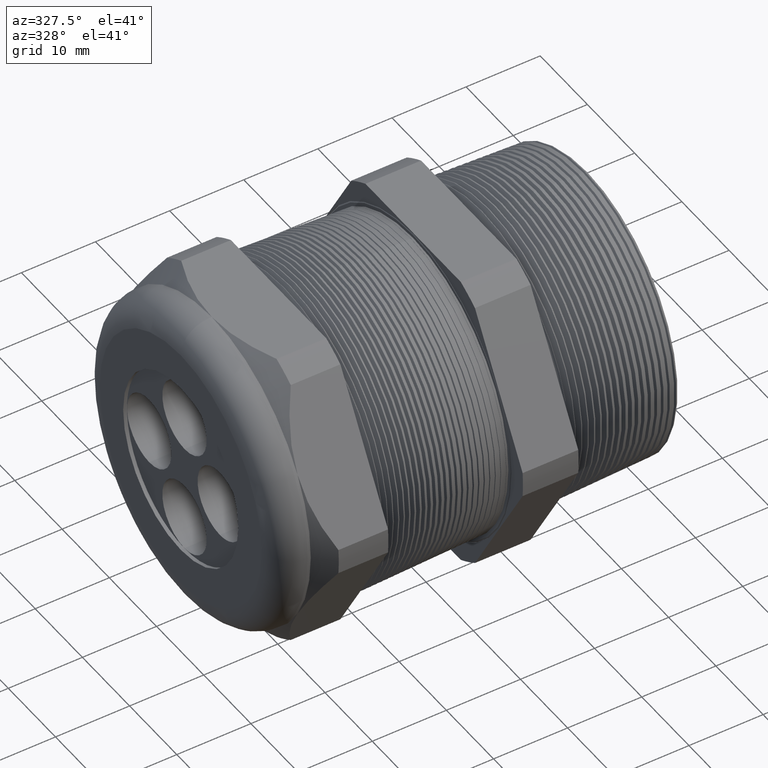
[diagram: clean part render]
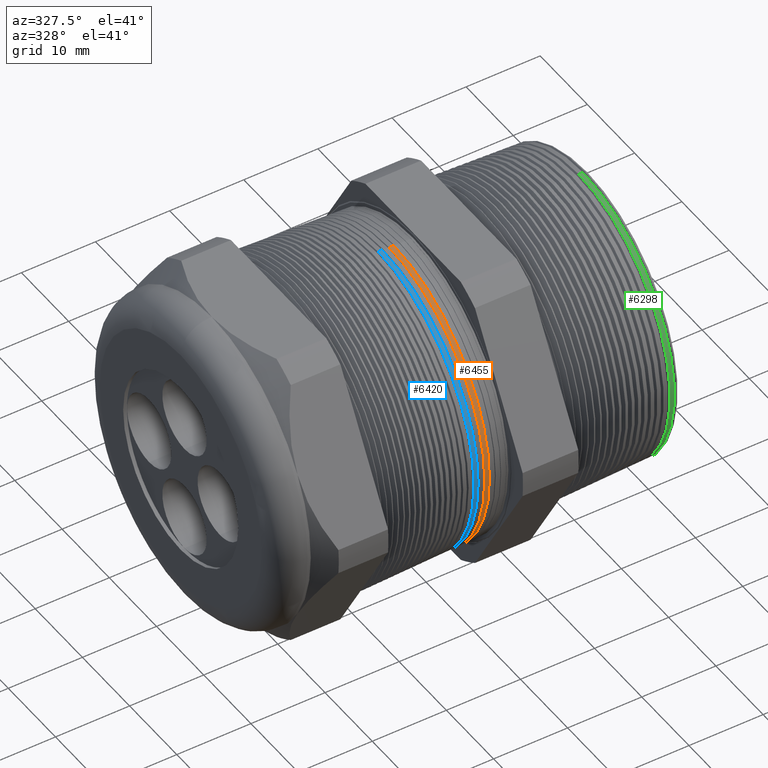
[diagram: same view with three faces highlighted in distinct colors, each labeled with its STEP entity id]
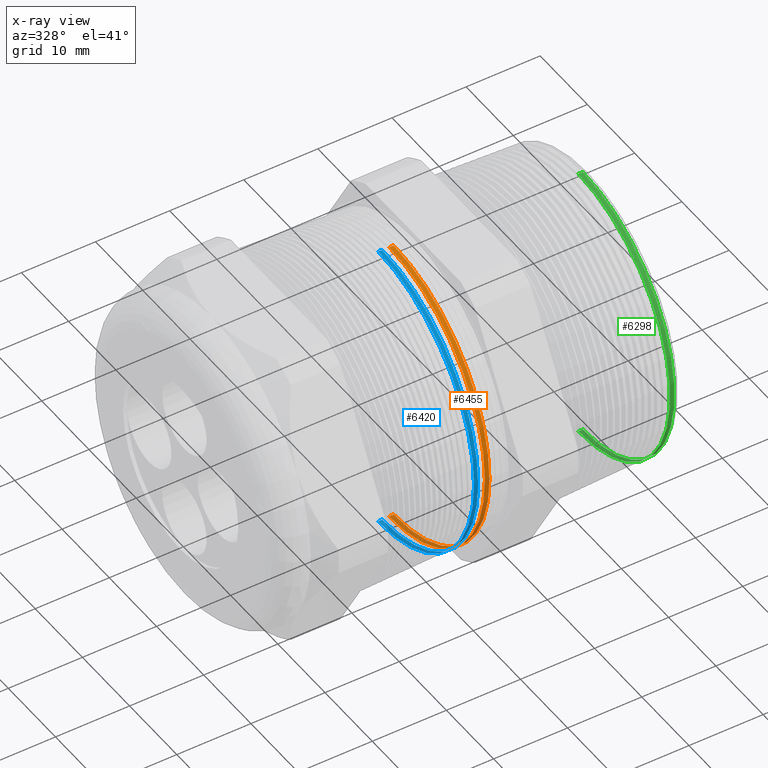
[diagram: x-ray of the same camera — body ghosted, the three highlighted faces saturated]
A machine part, auxiliary view with three faces highlighted in distinct colors.
The next image is the same camera in x-ray (body ghosted, the three faces saturated) — at least one of them is partly hidden behind the body in this view.
Their STEP definitions:

[orange] entity #6455 — the highlighted conical surface has half-angle 2 deg.
#620 = CARTESIAN_POINT ( 'NONE',  ( -0.7089635698838094900, 0.0000000000000000000, 0.7986511390053001600 ) ) ;
#704 = CARTESIAN_POINT ( 'NONE',  ( -0.7089635698838094900, 9.785931555235194000E-017, -0.7986511390053001600 ) ) ;
#745 = CARTESIAN_POINT ( 'NONE',  ( -0.7336373450403760300, 9.791207500288103700E-017, -0.7995127662200336400 ) ) ;
#751 = CARTESIAN_POINT ( 'NONE',  ( -0.7336373450403760300, 0.0000000000000000000, 0.7995127662200336400 ) ) ;
#2175 = DIRECTION ( 'NONE',  ( -0.9993908270190959800, 0.0000000000000000000, 0.03489949670249361400 ) ) ;
#2176 = VECTOR ( 'NONE', #2175, 39.37007874015748100 ) ;
#2177 = CARTESIAN_POINT ( 'NONE',  ( -0.6052755905511809600, 0.0000000000000000000, 0.7950302749799610400 ) ) ;
#2178 = LINE ( 'NONE', #2177, #2176 ) ;
#2179 = DIRECTION ( 'NONE',  ( -0.9993908270190959800, 4.273955692856241200E-018, -0.03489949670249361400 ) ) ;
#2180 = VECTOR ( 'NONE', #2179, 39.37007874015748100 ) ;
#2181 = CARTESIAN_POINT ( 'NONE',  ( -0.6052755905511809600, 9.736312814794494100E-017, -0.7950302749799610400 ) ) ;
#2185 = LINE ( 'NONE', #2181, #2180 ) ;
#2730 = DIRECTION ( 'NONE',  ( 0.0000000000000000000, 0.0000000000000000000, -1.000000000000000000 ) ) ;
#2731 = DIRECTION ( 'NONE',  ( -1.000000000000000000, 0.0000000000000000000, 0.0000000000000000000 ) ) ;
#2732 = CARTESIAN_POINT ( 'NONE',  ( -0.7336373450403760300, 0.0000000000000000000, 0.0000000000000000000 ) ) ;
#2733 = AXIS2_PLACEMENT_3D ( 'NONE', #2732, #2731, #2730 ) ;
#2734 = CIRCLE ( 'NONE', #2733, 0.7995127662200336400 ) ;
#2735 = DIRECTION ( 'NONE',  ( 0.0000000000000000000, 0.0000000000000000000, 1.000000000000000000 ) ) ;
#2736 = DIRECTION ( 'NONE',  ( 1.000000000000000000, 0.0000000000000000000, 0.0000000000000000000 ) ) ;
#2737 = CARTESIAN_POINT ( 'NONE',  ( -0.7089635698838094900, 0.0000000000000000000, 0.0000000000000000000 ) ) ;
#2738 = AXIS2_PLACEMENT_3D ( 'NONE', #2737, #2736, #2735 ) ;
#2739 = CIRCLE ( 'NONE', #2738, 0.7986511390053001600 ) ;
#2755 = CONICAL_SURFACE ( 'NONE', #2816, 0.7950302749799610400, 0.03490658503987922900 ) ;
#2756 = FACE_OUTER_BOUND ( 'NONE', #6379, .T. ) ;
#2813 = DIRECTION ( 'NONE',  ( 0.0000000000000000000, 0.0000000000000000000, 1.000000000000000000 ) ) ;
#2814 = DIRECTION ( 'NONE',  ( -1.000000000000000000, 0.0000000000000000000, 0.0000000000000000000 ) ) ;
#2815 = CARTESIAN_POINT ( 'NONE',  ( -0.6052755905511809600, 0.0000000000000000000, 0.0000000000000000000 ) ) ;
#2816 = AXIS2_PLACEMENT_3D ( 'NONE', #2815, #2814, #2813 ) ;
#5331 = VERTEX_POINT ( 'NONE', #620 ) ;
#5354 = VERTEX_POINT ( 'NONE', #704 ) ;
#5395 = VERTEX_POINT ( 'NONE', #751 ) ;
#5398 = VERTEX_POINT ( 'NONE', #745 ) ;
#6131 = EDGE_CURVE ( 'NONE', #5354, #5398, #2185, .T. ) ;
#6134 = EDGE_CURVE ( 'NONE', #5331, #5395, #2178, .T. ) ;
#6379 = EDGE_LOOP ( 'NONE', ( #6380, #6433, #6435, #6436 ) ) ;
#6380 = ORIENTED_EDGE ( 'NONE', *, *, #6131, .F. ) ;
#6433 = ORIENTED_EDGE ( 'NONE', *, *, #6434, .F. ) ;
#6434 = EDGE_CURVE ( 'NONE', #5331, #5354, #2739, .T. ) ;
#6435 = ORIENTED_EDGE ( 'NONE', *, *, #6134, .T. ) ;
#6436 = ORIENTED_EDGE ( 'NONE', *, *, #6437, .F. ) ;
#6437 = EDGE_CURVE ( 'NONE', #5398, #5395, #2734, .T. ) ;
#6455 = ADVANCED_FACE ( 'NONE', ( #2756 ), #2755, .T. ) ;

[blue] entity #6420 — the highlighted conical surface has half-angle 2 deg.
#729 = CARTESIAN_POINT ( 'NONE',  ( -0.7700987089584209200, 0.0000000000000000000, 0.8007860251047701500 ) ) ;
#735 = CARTESIAN_POINT ( 'NONE',  ( -0.7700987089584209200, 9.811559667922354100E-017, -0.8007860251047701500 ) ) ;
#856 = CARTESIAN_POINT ( 'NONE',  ( -0.7923560489813498100, 9.816318911379818900E-017, -0.8015632685452099800 ) ) ;
#862 = CARTESIAN_POINT ( 'NONE',  ( -0.7923560489813498100, 0.0000000000000000000, 0.8015632685452099800 ) ) ;
#2064 = DIRECTION ( 'NONE',  ( -0.9993908270190959800, 4.273955692856241200E-018, -0.03489949670249361400 ) ) ;
#2065 = VECTOR ( 'NONE', #2064, 39.37007874015748100 ) ;
#2066 = CARTESIAN_POINT ( 'NONE',  ( -0.6052755905511809600, 9.736312814794494100E-017, -0.7950302749799610400 ) ) ;
#2072 = LINE ( 'NONE', #2066, #2065 ) ;
#2161 = DIRECTION ( 'NONE',  ( -0.9993908270190959800, 0.0000000000000000000, 0.03489949670249361400 ) ) ;
#2162 = VECTOR ( 'NONE', #2161, 39.37007874015748100 ) ;
#2163 = CARTESIAN_POINT ( 'NONE',  ( -0.6052755905511809600, 0.0000000000000000000, 0.7950302749799610400 ) ) ;
#2164 = LINE ( 'NONE', #2163, #2162 ) ;
#2440 = CIRCLE ( 'NONE', #2754, 0.8015632685452102100 ) ;
#2693 = DIRECTION ( 'NONE',  ( 0.0000000000000000000, 0.0000000000000000000, 1.000000000000000000 ) ) ;
#2694 = DIRECTION ( 'NONE',  ( 1.000000000000000000, 0.0000000000000000000, 0.0000000000000000000 ) ) ;
#2695 = AXIS2_PLACEMENT_3D ( 'NONE', #2700, #2694, #2693 ) ;
#2696 = CIRCLE ( 'NONE', #2695, 0.8007860251047701500 ) ;
#2697 = DIRECTION ( 'NONE',  ( 0.0000000000000000000, 0.0000000000000000000, 1.000000000000000000 ) ) ;
#2698 = DIRECTION ( 'NONE',  ( -1.000000000000000000, 0.0000000000000000000, 0.0000000000000000000 ) ) ;
#2699 = AXIS2_PLACEMENT_3D ( 'NONE', #2707, #2698, #2697 ) ;
#2700 = CARTESIAN_POINT ( 'NONE',  ( -0.7700987089584209200, 0.0000000000000000000, 0.0000000000000000000 ) ) ;
#2701 = CONICAL_SURFACE ( 'NONE', #2699, 0.7950302749799610400, 0.03490658503987922900 ) ;
#2702 = FACE_OUTER_BOUND ( 'NONE', #6421, .T. ) ;
#2707 = CARTESIAN_POINT ( 'NONE',  ( -0.6052755905511809600, 0.0000000000000000000, 0.0000000000000000000 ) ) ;
#2751 = DIRECTION ( 'NONE',  ( 0.0000000000000000000, 0.0000000000000000000, -1.000000000000000000 ) ) ;
#2752 = DIRECTION ( 'NONE',  ( -1.000000000000000000, 0.0000000000000000000, 0.0000000000000000000 ) ) ;
#2753 = CARTESIAN_POINT ( 'NONE',  ( -0.7923560489813498100, 0.0000000000000000000, 0.0000000000000000000 ) ) ;
#2754 = AXIS2_PLACEMENT_3D ( 'NONE', #2753, #2752, #2751 ) ;
#5371 = VERTEX_POINT ( 'NONE', #735 ) ;
#5374 = VERTEX_POINT ( 'NONE', #729 ) ;
#5437 = VERTEX_POINT ( 'NONE', #862 ) ;
#5440 = VERTEX_POINT ( 'NONE', #856 ) ;
#6089 = EDGE_CURVE ( 'NONE', #5371, #5440, #2072, .T. ) ;
#6143 = EDGE_CURVE ( 'NONE', #5374, #5437, #2164, .T. ) ;
#6420 = ADVANCED_FACE ( 'NONE', ( #2702 ), #2701, .T. ) ;
#6421 = EDGE_LOOP ( 'NONE', ( #6422, #6423, #6425, #6426 ) ) ;
#6422 = ORIENTED_EDGE ( 'NONE', *, *, #6089, .F. ) ;
#6423 = ORIENTED_EDGE ( 'NONE', *, *, #6424, .F. ) ;
#6424 = EDGE_CURVE ( 'NONE', #5374, #5371, #2696, .T. ) ;
#6425 = ORIENTED_EDGE ( 'NONE', *, *, #6143, .T. ) ;
#6426 = ORIENTED_EDGE ( 'NONE', *, *, #6427, .F. ) ;
#6427 = EDGE_CURVE ( 'NONE', #5440, #5437, #2440, .T. ) ;

[green] entity #6298 — the highlighted conical surface has half-angle 2 deg.
#2188 = CIRCLE ( 'NONE', #2190, 0.7635480703260414400 ) ;
#2190 = AXIS2_PLACEMENT_3D ( 'NONE', #2439, #2501, #2500 ) ;
#2418 = DIRECTION ( 'NONE',  ( 0.0000000000000000000, 0.0000000000000000000, -1.000000000000000000 ) ) ;
#2419 = DIRECTION ( 'NONE',  ( -1.000000000000000000, 0.0000000000000000000, 0.0000000000000000000 ) ) ;
#2420 = CARTESIAN_POINT ( 'NONE',  ( 0.2726611505627726300, 0.0000000000000000000, 0.0000000000000000000 ) ) ;
#2421 = AXIS2_PLACEMENT_3D ( 'NONE', #2420, #2419, #2418 ) ;
#2422 = CIRCLE ( 'NONE', #2421, 0.7643720484151909100 ) ;
#2439 = CARTESIAN_POINT ( 'NONE',  ( 0.2962567958232278900, 0.0000000000000000000, 0.0000000000000000000 ) ) ;
#2441 = DIRECTION ( 'NONE',  ( 0.0000000000000000000, 0.0000000000000000000, 1.000000000000000000 ) ) ;
#2442 = DIRECTION ( 'NONE',  ( -1.000000000000000000, 0.0000000000000000000, 0.0000000000000000000 ) ) ;
#2443 = CARTESIAN_POINT ( 'NONE',  ( 0.3200000000000000100, 0.0000000000000000000, 0.0000000000000000000 ) ) ;
#2444 = AXIS2_PLACEMENT_3D ( 'NONE', #2443, #2442, #2441 ) ;
#2445 = CONICAL_SURFACE ( 'NONE', #2444, 0.7627189393659891100, 0.03490658503987925000 ) ;
#2446 = FACE_OUTER_BOUND ( 'NONE', #6299, .T. ) ;
#2447 = DIRECTION ( 'NONE',  ( -0.9993908270190959800, 0.0000000000000000000, 0.03489949670249363500 ) ) ;
#2448 = VECTOR ( 'NONE', #2447, 39.37007874015748100 ) ;
#2449 = CARTESIAN_POINT ( 'NONE',  ( 0.3200000000000000100, 0.0000000000000000000, 0.7627189393659891100 ) ) ;
#2450 = LINE ( 'NONE', #2449, #2448 ) ;
#2451 = DIRECTION ( 'NONE',  ( -0.9993908270190959800, 4.273955692856243500E-018, -0.03489949670249363500 ) ) ;
#2452 = VECTOR ( 'NONE', #2451, 39.37007874015748100 ) ;
#2453 = CARTESIAN_POINT ( 'NONE',  ( 0.3200000000000000100, 9.340613077436227500E-017, -0.7627189393659891100 ) ) ;
#2457 = LINE ( 'NONE', #2453, #2452 ) ;
#2500 = DIRECTION ( 'NONE',  ( 0.0000000000000000000, 0.0000000000000000000, 1.000000000000000000 ) ) ;
#2501 = DIRECTION ( 'NONE',  ( 1.000000000000000000, 0.0000000000000000000, 0.0000000000000000000 ) ) ;
#4744 = CARTESIAN_POINT ( 'NONE',  ( 0.2962567958232278900, 9.355812413846469500E-017, -0.7635480703260414400 ) ) ;
#4827 = CARTESIAN_POINT ( 'NONE',  ( 0.2726611505627726300, 0.0000000000000000000, 0.7643720484151908000 ) ) ;
#4843 = CARTESIAN_POINT ( 'NONE',  ( 0.2726611505627726300, 9.360857824493690000E-017, -0.7643720484151908000 ) ) ;
#4870 = CARTESIAN_POINT ( 'NONE',  ( 0.2962567958232278900, 0.0000000000000000000, 0.7635480703260414400 ) ) ;
#6278 = ORIENTED_EDGE ( 'NONE', *, *, #6297, .T. ) ;
#6279 = ORIENTED_EDGE ( 'NONE', *, *, #6280, .F. ) ;
#6280 = EDGE_CURVE ( 'NONE', #7722, #7727, #2422, .T. ) ;
#6294 = EDGE_CURVE ( 'NONE', #7670, #7722, #2457, .T. ) ;
#6297 = EDGE_CURVE ( 'NONE', #7737, #7727, #2450, .T. ) ;
#6298 = ADVANCED_FACE ( 'NONE', ( #2446 ), #2445, .T. ) ;
#6299 = EDGE_LOOP ( 'NONE', ( #6300, #6301, #6278, #6279 ) ) ;
#6300 = ORIENTED_EDGE ( 'NONE', *, *, #6294, .F. ) ;
#6301 = ORIENTED_EDGE ( 'NONE', *, *, #6302, .F. ) ;
#6302 = EDGE_CURVE ( 'NONE', #7737, #7670, #2188, .T. ) ;
#7670 = VERTEX_POINT ( 'NONE', #4744 ) ;
#7722 = VERTEX_POINT ( 'NONE', #4843 ) ;
#7727 = VERTEX_POINT ( 'NONE', #4827 ) ;
#7737 = VERTEX_POINT ( 'NONE', #4870 ) ;